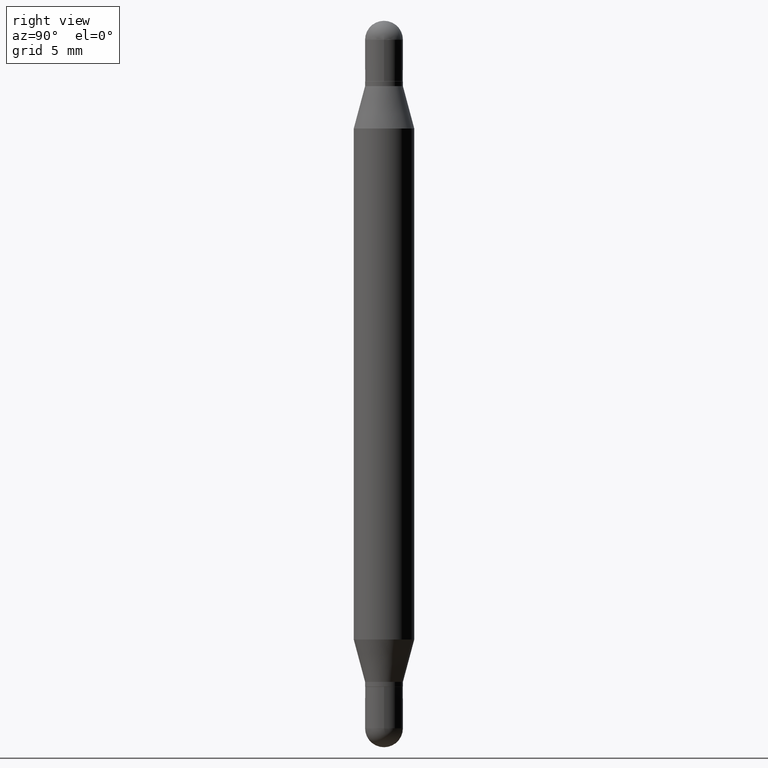
[diagram: clean part render]
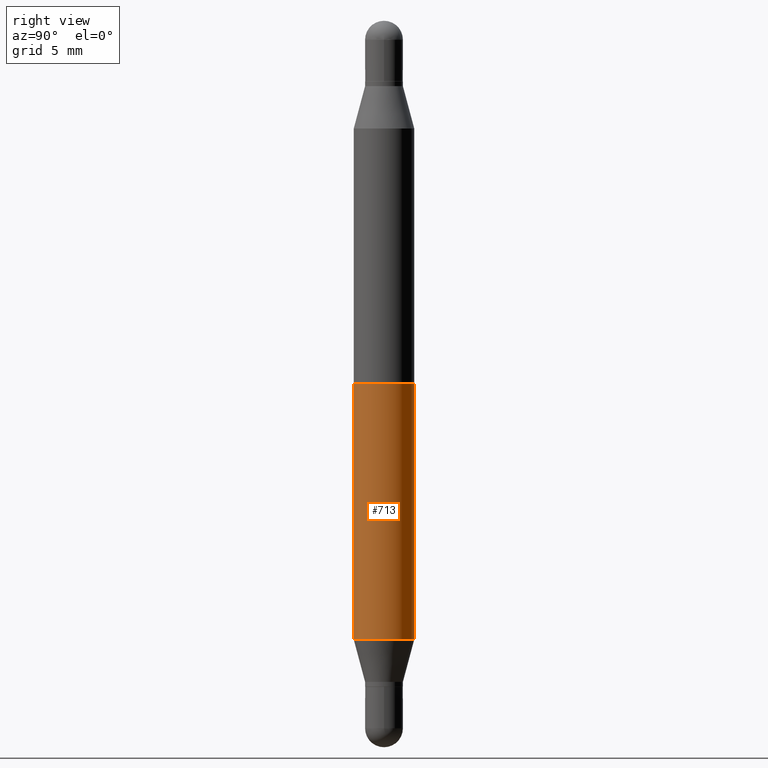
[diagram: same view with one face highlighted and labeled with its STEP entity id]
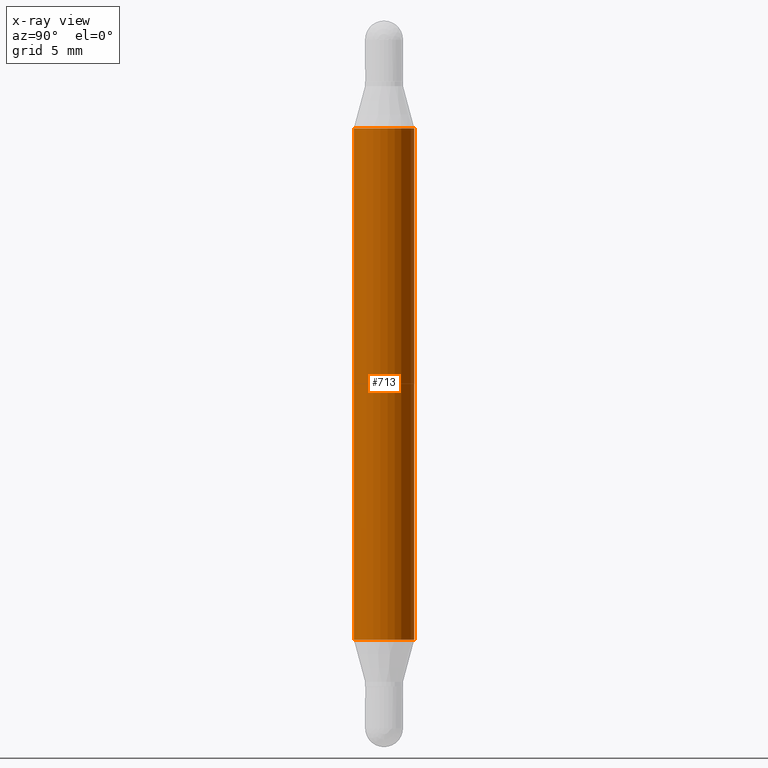
[diagram: x-ray of the same camera — body ghosted, the highlighted face saturated]
A machine part, right view. The second image highlights one B-rep face of the part: STEP entity #713.
The next image is the same camera in x-ray: the body ghosted, the highlighted face saturated — about 0% of this face is hidden behind the body in this view.
In plain terms, the highlighted cylindrical surface (edge-blend (fillet) strip) has radius 1.5875 mm, axis along (-0, -0, -1).
Its self-contained STEP definition (entity closure, byte-faithful):
#1 = EDGE_CURVE ( 'NONE', #923, #252, #928, .T. ) ;
#6 = FACE_OUTER_BOUND ( 'NONE', #214, .T. ) ;
#8 = CARTESIAN_POINT ( 'NONE',  ( 3.124250706487097646E-29, -7.828787041729109440E-16, -0.2225165914374913068 ) ) ;
#154 = CARTESIAN_POINT ( 'NONE',  ( 3.124250706487097646E-29, -4.460016081243167636E-15, -1.277483408562509082 ) ) ;
#160 = LINE ( 'NONE', #504, #750 ) ;
#181 = DIRECTION ( 'NONE',  ( -2.445629184337248949E-29, -3.479844137619810818E-15, -1.000000000000000000 ) ) ;
#214 = EDGE_LOOP ( 'NONE', ( #577, #851, #939, #271 ) ) ;
#252 = VERTEX_POINT ( 'NONE', #823 ) ;
#261 = LINE ( 'NONE', #272, #765 ) ;
#271 = ORIENTED_EDGE ( 'NONE', *, *, #1074, .T. ) ;
#272 = CARTESIAN_POINT ( 'NONE',  ( -4.364351673553916201E-16, -0.06250000000000521805, -1.500000000000000222 ) ) ;
#335 = AXIS2_PLACEMENT_3D ( 'NONE', #442, #181, #682 ) ;
#367 = VERTEX_POINT ( 'NONE', #1077 ) ;
#372 = CIRCLE ( 'NONE', #391, 0.06250000000000000000 ) ;
#391 = AXIS2_PLACEMENT_3D ( 'NONE', #154, #1078, #400 ) ;
#400 = DIRECTION ( 'NONE',  ( -6.982962677686265922E-15, -1.000000000000000000, 4.370956789862821150E-15 ) ) ;
#431 = CYLINDRICAL_SURFACE ( 'NONE', #335, 0.06250000000000000000 ) ;
#442 = CARTESIAN_POINT ( 'NONE',  ( 0.000000000000000000, -5.228321854365732350E-15, -1.500000000000000444 ) ) ;
#504 = CARTESIAN_POINT ( 'NONE',  ( 4.287811248607206733E-16, 0.06249999999999477501, -1.500000000000000666 ) ) ;
#517 = DIRECTION ( 'NONE',  ( 2.445629184337248949E-29, 3.479844137619810818E-15, 1.000000000000000000 ) ) ;
#577 = ORIENTED_EDGE ( 'NONE', *, *, #1003, .F. ) ;
#682 = DIRECTION ( 'NONE',  ( -6.982962677686265922E-15, -1.000000000000000000, 4.370956789862821150E-15 ) ) ;
#694 = DIRECTION ( 'NONE',  ( -6.982962677686265922E-15, -1.000000000000000000, 3.278217592397115862E-15 ) ) ;
#713 = ADVANCED_FACE ( 'NONE', ( #6 ), #431, .T. ) ;
#736 = EDGE_CURVE ( 'NONE', #923, #367, #261, .T. ) ;
#747 = DIRECTION ( 'NONE',  ( -2.445629184337248949E-29, -3.479844137619810818E-15, -1.000000000000000000 ) ) ;
#750 = VECTOR ( 'NONE', #747, 39.37007874015748143 ) ;
#765 = VECTOR ( 'NONE', #1118, 39.37007874015748143 ) ;
#823 = CARTESIAN_POINT ( 'NONE',  ( 4.287811248607519320E-16, 0.06249999999999921590, -0.2225165914374915288 ) ) ;
#851 = ORIENTED_EDGE ( 'NONE', *, *, #1, .F. ) ;
#887 = AXIS2_PLACEMENT_3D ( 'NONE', #8, #517, #694 ) ;
#923 = VERTEX_POINT ( 'NONE', #1064 ) ;
#928 = CIRCLE ( 'NONE', #887, 0.06250000000000000000 ) ;
#939 = ORIENTED_EDGE ( 'NONE', *, *, #736, .T. ) ;
#997 = CARTESIAN_POINT ( 'NONE',  ( 4.287811248607390637E-16, 0.06249999999999554523, -1.277483408562509304 ) ) ;
#1003 = EDGE_CURVE ( 'NONE', #252, #1049, #160, .T. ) ;
#1049 = VERTEX_POINT ( 'NONE', #997 ) ;
#1064 = CARTESIAN_POINT ( 'NONE',  ( -4.364351673553603615E-16, -0.06250000000000079103, -0.2225165914374911125 ) ) ;
#1074 = EDGE_CURVE ( 'NONE', #367, #1049, #372, .T. ) ;
#1077 = CARTESIAN_POINT ( 'NONE',  ( -4.364351673553603615E-16, -0.06250000000000445477, -1.277483408562508860 ) ) ;
#1078 = DIRECTION ( 'NONE',  ( -2.445629184337248949E-29, 3.491251668201163019E-15, 1.000000000000000000 ) ) ;
#1118 = DIRECTION ( 'NONE',  ( -2.445629184337248949E-29, -3.479844137619810818E-15, -1.000000000000000000 ) ) ;